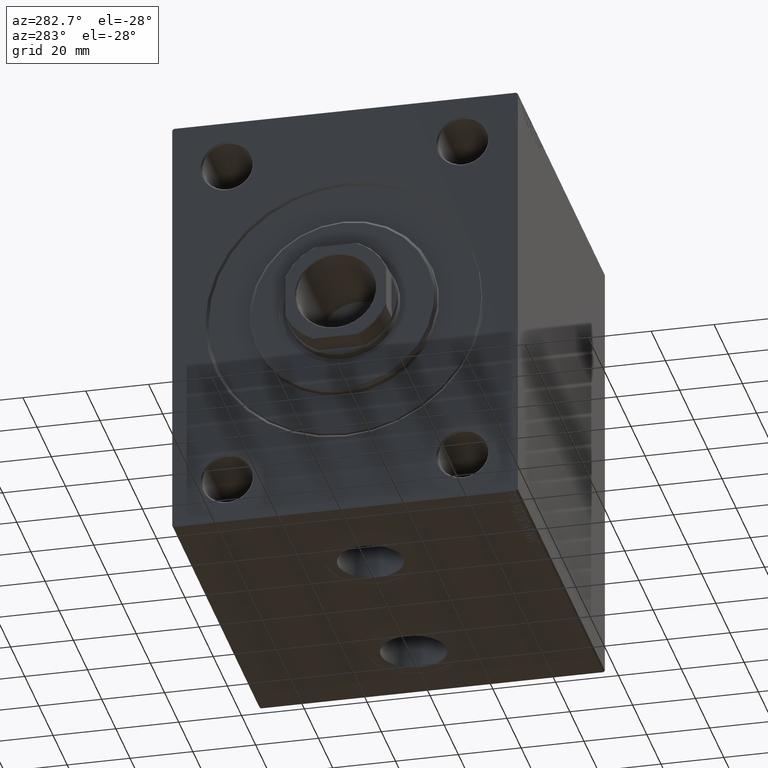
[diagram: clean part render]
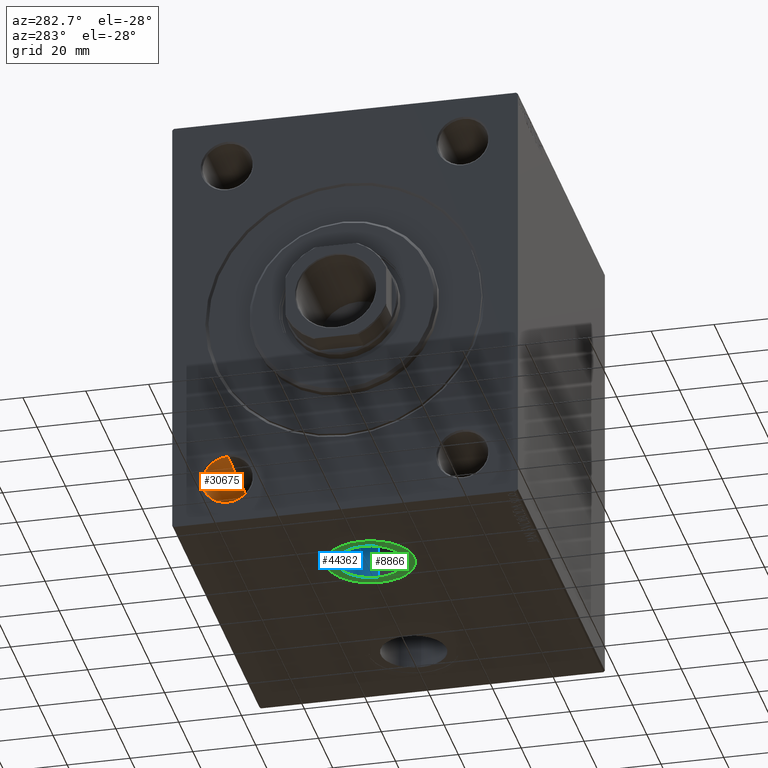
[diagram: same view with three faces highlighted in distinct colors, each labeled with its STEP entity id]
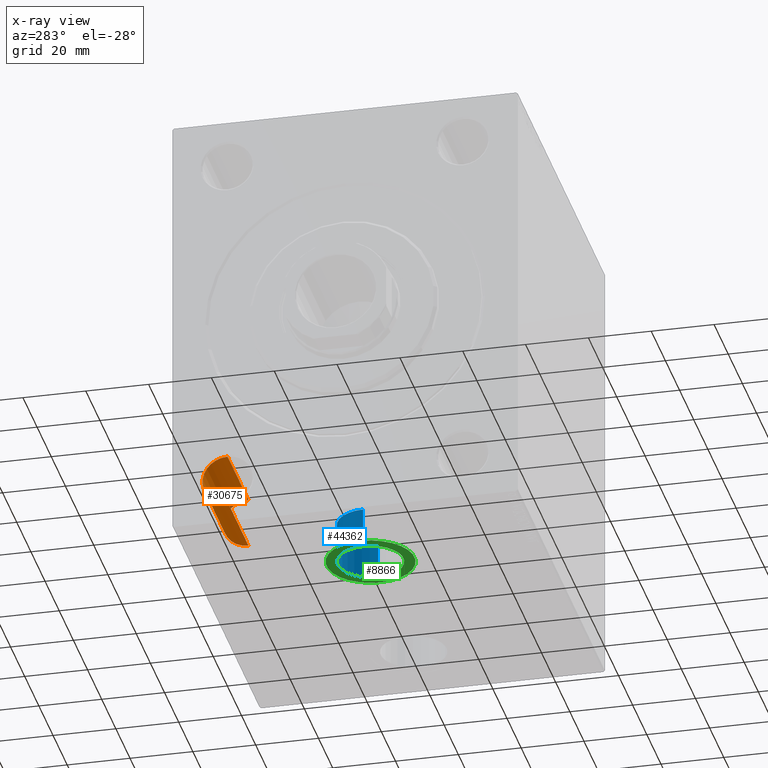
[diagram: x-ray of the same camera — body ghosted, the three highlighted faces saturated]
A machine part, auxiliary view with three faces highlighted in distinct colors.
The next image is the same camera in x-ray (body ghosted, the three faces saturated) — at least one of them is partly hidden behind the body in this view.
Their STEP definitions:

[orange] entity #30675 — the highlighted cylindrical surface (edge-blend (fillet) strip) has radius 8 mm, axis along (-1, -0, -0).
#1028 = ORIENTED_EDGE ( 'NONE', *, *, #29192, .T. ) ;
#2004 = EDGE_CURVE ( 'NONE', #12949, #40361, #36767, .T. ) ;
#3539 = EDGE_LOOP ( 'NONE', ( #16494, #24688, #1028, #40886 ) ) ;
#5089 = DIRECTION ( 'NONE',  ( 0.000000000000000000, 0.000000000000000000, -1.000000000000000000 ) ) ;
#5254 = CARTESIAN_POINT ( 'NONE',  ( 0.000000000000000000, 37.50000000000000000, -62.99999999999998579 ) ) ;
#5890 = VECTOR ( 'NONE', #29177, 1000.000000000000000 ) ;
#6175 = DIRECTION ( 'NONE',  ( -1.000000000000000000, -0.000000000000000000, -0.000000000000000000 ) ) ;
#6627 = DIRECTION ( 'NONE',  ( 0.000000000000000000, 0.000000000000000000, 1.000000000000000000 ) ) ;
#8867 = VERTEX_POINT ( 'NONE', #14168 ) ;
#9521 = CYLINDRICAL_SURFACE ( 'NONE', #27727, 7.999999999999992895 ) ;
#9733 = DIRECTION ( 'NONE',  ( 0.000000000000000000, 0.000000000000000000, 1.000000000000000000 ) ) ;
#10717 = VERTEX_POINT ( 'NONE', #24980 ) ;
#11651 = VECTOR ( 'NONE', #11918, 1000.000000000000000 ) ;
#11781 = CARTESIAN_POINT ( 'NONE',  ( 0.5000000000000108802, 37.50000000000000000, -62.99999999999998579 ) ) ;
#11918 = DIRECTION ( 'NONE',  ( -1.000000000000000000, -0.000000000000000000, -0.000000000000000000 ) ) ;
#12472 = CARTESIAN_POINT ( 'NONE',  ( 0.5000000000000108802, 37.50000000000000000, -54.99999999999999289 ) ) ;
#12949 = VERTEX_POINT ( 'NONE', #33613 ) ;
#14168 = CARTESIAN_POINT ( 'NONE',  ( 0.5000000000000108802, 37.50000000000000000, -47.00000000000000000 ) ) ;
#14182 = EDGE_CURVE ( 'NONE', #10717, #12949, #42064, .T. ) ;
#16494 = ORIENTED_EDGE ( 'NONE', *, *, #2004, .F. ) ;
#20748 = CARTESIAN_POINT ( 'NONE',  ( 0.000000000000000000, 37.50000000000000000, -54.99999999999999289 ) ) ;
#24688 = ORIENTED_EDGE ( 'NONE', *, *, #14182, .F. ) ;
#24980 = CARTESIAN_POINT ( 'NONE',  ( 30.00000000000000000, 37.50000000000000000, -47.00000000000000000 ) ) ;
#26978 = FACE_OUTER_BOUND ( 'NONE', #3539, .T. ) ;
#27727 = AXIS2_PLACEMENT_3D ( 'NONE', #20748, #44454, #9733 ) ;
#27785 = CARTESIAN_POINT ( 'NONE',  ( 30.00000000000000000, 37.50000000000000000, -54.99999999999999289 ) ) ;
#29177 = DIRECTION ( 'NONE',  ( -1.000000000000000000, -0.000000000000000000, -0.000000000000000000 ) ) ;
#29192 = EDGE_CURVE ( 'NONE', #10717, #8867, #29381, .T. ) ;
#29381 = LINE ( 'NONE', #36290, #11651 ) ;
#30675 = ADVANCED_FACE ( 'NONE', ( #26978 ), #9521, .F. ) ;
#31806 = AXIS2_PLACEMENT_3D ( 'NONE', #27785, #6175, #6627 ) ;
#33613 = CARTESIAN_POINT ( 'NONE',  ( 30.00000000000000000, 37.50000000000000000, -62.99999999999998579 ) ) ;
#36290 = CARTESIAN_POINT ( 'NONE',  ( 0.000000000000000000, 37.50000000000000000, -47.00000000000000000 ) ) ;
#36767 = LINE ( 'NONE', #5254, #5890 ) ;
#40046 = DIRECTION ( 'NONE',  ( -1.000000000000000000, 0.000000000000000000, 0.000000000000000000 ) ) ;
#40361 = VERTEX_POINT ( 'NONE', #11781 ) ;
#40886 = ORIENTED_EDGE ( 'NONE', *, *, #45483, .T. ) ;
#41652 = AXIS2_PLACEMENT_3D ( 'NONE', #12472, #40046, #5089 ) ;
#42064 = CIRCLE ( 'NONE', #31806, 7.999999999999992895 ) ;
#44454 = DIRECTION ( 'NONE',  ( -1.000000000000000000, -0.000000000000000000, -0.000000000000000000 ) ) ;
#44570 = CIRCLE ( 'NONE', #41652, 7.999999999999992895 ) ;
#45483 = EDGE_CURVE ( 'NONE', #8867, #40361, #44570, .T. ) ;

[blue] entity #44362 — the highlighted cylindrical surface (edge-blend (fillet) strip) has radius 10.48 mm, axis along (-0, -0, -1).
#1410 = CARTESIAN_POINT ( 'NONE',  ( 46.47999999999999687, 5.489560609482857396E-15, -57.00000000000000000 ) ) ;
#1724 = DIRECTION ( 'NONE',  ( 0.000000000000000000, 0.000000000000000000, -1.000000000000000000 ) ) ;
#5362 = LINE ( 'NONE', #26285, #6078 ) ;
#6078 = VECTOR ( 'NONE', #31033, 1000.000000000000000 ) ;
#6149 = EDGE_CURVE ( 'NONE', #33362, #25493, #35627, .T. ) ;
#6902 = DIRECTION ( 'NONE',  ( -0.000000000000000000, -0.000000000000000000, -1.000000000000000000 ) ) ;
#8506 = CIRCLE ( 'NONE', #31999, 10.48000000000000043 ) ;
#8883 = CARTESIAN_POINT ( 'NONE',  ( 36.00000000000000000, 4.206130763976431907E-15, -57.00000000000000000 ) ) ;
#9445 = EDGE_CURVE ( 'NONE', #23921, #33700, #5362, .T. ) ;
#13409 = DIRECTION ( 'NONE',  ( 0.000000000000000000, 0.000000000000000000, -1.000000000000000000 ) ) ;
#13808 = CARTESIAN_POINT ( 'NONE',  ( 46.47999999999999687, 5.489560609482857396E-15, -57.00000000000000000 ) ) ;
#13866 = CARTESIAN_POINT ( 'NONE',  ( 36.00000000000000000, 4.206130763976431907E-15, -69.90000000000000568 ) ) ;
#14501 = CYLINDRICAL_SURFACE ( 'NONE', #39379, 10.48000000000000043 ) ;
#17351 = ORIENTED_EDGE ( 'NONE', *, *, #21361, .T. ) ;
#17726 = FACE_OUTER_BOUND ( 'NONE', #27175, .T. ) ;
#17757 = DIRECTION ( 'NONE',  ( -1.000000000000000000, 0.000000000000000000, 0.000000000000000000 ) ) ;
#21361 = EDGE_CURVE ( 'NONE', #33700, #25493, #8506, .T. ) ;
#23337 = ORIENTED_EDGE ( 'NONE', *, *, #6149, .F. ) ;
#23921 = VERTEX_POINT ( 'NONE', #35880 ) ;
#25493 = VERTEX_POINT ( 'NONE', #41675 ) ;
#26285 = CARTESIAN_POINT ( 'NONE',  ( 25.51999999999999602, 4.206130763976431907E-15, -57.00000000000000000 ) ) ;
#27175 = EDGE_LOOP ( 'NONE', ( #23337, #36184, #37155, #17351 ) ) ;
#29455 = EDGE_CURVE ( 'NONE', #23921, #33362, #43951, .T. ) ;
#30552 = CARTESIAN_POINT ( 'NONE',  ( 25.51999999999999602, 4.206130763976431907E-15, -69.90000000000000568 ) ) ;
#31033 = DIRECTION ( 'NONE',  ( -0.000000000000000000, -0.000000000000000000, -1.000000000000000000 ) ) ;
#31754 = CARTESIAN_POINT ( 'NONE',  ( 36.00000000000000000, 4.206130763976431907E-15, -57.00000000000000000 ) ) ;
#31981 = DIRECTION ( 'NONE',  ( -0.000000000000000000, -0.000000000000000000, -1.000000000000000000 ) ) ;
#31999 = AXIS2_PLACEMENT_3D ( 'NONE', #13866, #13409, #17757 ) ;
#33362 = VERTEX_POINT ( 'NONE', #1410 ) ;
#33484 = DIRECTION ( 'NONE',  ( -1.000000000000000000, 0.000000000000000000, 0.000000000000000000 ) ) ;
#33700 = VERTEX_POINT ( 'NONE', #30552 ) ;
#35627 = LINE ( 'NONE', #13808, #39747 ) ;
#35880 = CARTESIAN_POINT ( 'NONE',  ( 25.51999999999999602, 4.206130763976431907E-15, -57.00000000000000000 ) ) ;
#36184 = ORIENTED_EDGE ( 'NONE', *, *, #29455, .F. ) ;
#37155 = ORIENTED_EDGE ( 'NONE', *, *, #9445, .T. ) ;
#39379 = AXIS2_PLACEMENT_3D ( 'NONE', #31754, #31981, #42091 ) ;
#39747 = VECTOR ( 'NONE', #6902, 1000.000000000000000 ) ;
#41031 = AXIS2_PLACEMENT_3D ( 'NONE', #8883, #1724, #33484 ) ;
#41675 = CARTESIAN_POINT ( 'NONE',  ( 46.47999999999999687, 5.489560609482857396E-15, -69.90000000000000568 ) ) ;
#42091 = DIRECTION ( 'NONE',  ( -1.000000000000000000, 0.000000000000000000, 0.000000000000000000 ) ) ;
#43951 = CIRCLE ( 'NONE', #41031, 10.48000000000000043 ) ;
#44362 = ADVANCED_FACE ( 'NONE', ( #17726 ), #14501, .F. ) ;

[green] entity #8866 — the highlighted planar face has unit normal (0, 0, -1).
#516 = CARTESIAN_POINT ( 'NONE',  ( 36.00000000000000000, 4.206130763976431907E-15, -69.90000000000000568 ) ) ;
#2075 = DIRECTION ( 'NONE',  ( -1.000000000000000000, 0.000000000000000000, 0.000000000000000000 ) ) ;
#3469 = ORIENTED_EDGE ( 'NONE', *, *, #21361, .F. ) ;
#3587 = DIRECTION ( 'NONE',  ( 0.000000000000000000, 0.000000000000000000, -1.000000000000000000 ) ) ;
#3739 = DIRECTION ( 'NONE',  ( 0.000000000000000000, 0.000000000000000000, -1.000000000000000000 ) ) ;
#4058 = CARTESIAN_POINT ( 'NONE',  ( 22.00000000000000000, 4.206130763976431907E-15, -69.90000000000000568 ) ) ;
#4590 = ORIENTED_EDGE ( 'NONE', *, *, #12410, .T. ) ;
#5756 = DIRECTION ( 'NONE',  ( 0.000000000000000000, 0.000000000000000000, -1.000000000000000000 ) ) ;
#8506 = CIRCLE ( 'NONE', #31999, 10.48000000000000043 ) ;
#8866 = ADVANCED_FACE ( 'NONE', ( #39216, #21079 ), #35118, .T. ) ;
#12410 = EDGE_CURVE ( 'NONE', #22083, #25606, #28903, .T. ) ;
#13409 = DIRECTION ( 'NONE',  ( 0.000000000000000000, 0.000000000000000000, -1.000000000000000000 ) ) ;
#13866 = CARTESIAN_POINT ( 'NONE',  ( 36.00000000000000000, 4.206130763976431907E-15, -69.90000000000000568 ) ) ;
#13884 = DIRECTION ( 'NONE',  ( -1.000000000000000000, 0.000000000000000000, 0.000000000000000000 ) ) ;
#14729 = EDGE_LOOP ( 'NONE', ( #3469, #33593 ) ) ;
#15906 = DIRECTION ( 'NONE',  ( -1.000000000000000000, 0.000000000000000000, 0.000000000000000000 ) ) ;
#16230 = EDGE_LOOP ( 'NONE', ( #4590, #34425 ) ) ;
#16420 = AXIS2_PLACEMENT_3D ( 'NONE', #26004, #40043, #15906 ) ;
#17757 = DIRECTION ( 'NONE',  ( -1.000000000000000000, 0.000000000000000000, 0.000000000000000000 ) ) ;
#18650 = CARTESIAN_POINT ( 'NONE',  ( 50.00000000000000000, 5.920636282782727137E-15, -69.90000000000000568 ) ) ;
#18764 = CIRCLE ( 'NONE', #39343, 10.48000000000000043 ) ;
#19576 = EDGE_CURVE ( 'NONE', #25606, #22083, #23115, .T. ) ;
#21079 = FACE_OUTER_BOUND ( 'NONE', #16230, .T. ) ;
#21121 = EDGE_CURVE ( 'NONE', #25493, #33700, #18764, .T. ) ;
#21361 = EDGE_CURVE ( 'NONE', #33700, #25493, #8506, .T. ) ;
#21652 = AXIS2_PLACEMENT_3D ( 'NONE', #516, #3739, #13884 ) ;
#22083 = VERTEX_POINT ( 'NONE', #4058 ) ;
#23115 = CIRCLE ( 'NONE', #21652, 13.99999999999999822 ) ;
#23230 = CARTESIAN_POINT ( 'NONE',  ( 36.00000000000000000, 4.206130763976431907E-15, -69.90000000000000568 ) ) ;
#25493 = VERTEX_POINT ( 'NONE', #41675 ) ;
#25606 = VERTEX_POINT ( 'NONE', #18650 ) ;
#26004 = CARTESIAN_POINT ( 'NONE',  ( 36.00000000000000000, 4.206130763976431907E-15, -69.90000000000000568 ) ) ;
#28196 = DIRECTION ( 'NONE',  ( -1.000000000000000000, 0.000000000000000000, -0.000000000000000000 ) ) ;
#28903 = CIRCLE ( 'NONE', #16420, 13.99999999999999822 ) ;
#30552 = CARTESIAN_POINT ( 'NONE',  ( 25.51999999999999602, 4.206130763976431907E-15, -69.90000000000000568 ) ) ;
#31999 = AXIS2_PLACEMENT_3D ( 'NONE', #13866, #13409, #17757 ) ;
#32107 = CARTESIAN_POINT ( 'NONE',  ( 0.000000000000000000, 0.000000000000000000, -69.90000000000000568 ) ) ;
#33593 = ORIENTED_EDGE ( 'NONE', *, *, #21121, .F. ) ;
#33700 = VERTEX_POINT ( 'NONE', #30552 ) ;
#34425 = ORIENTED_EDGE ( 'NONE', *, *, #19576, .T. ) ;
#34707 = AXIS2_PLACEMENT_3D ( 'NONE', #32107, #3587, #28196 ) ;
#35118 = PLANE ( 'NONE',  #34707 ) ;
#39216 = FACE_BOUND ( 'NONE', #14729, .T. ) ;
#39343 = AXIS2_PLACEMENT_3D ( 'NONE', #23230, #5756, #2075 ) ;
#40043 = DIRECTION ( 'NONE',  ( 0.000000000000000000, 0.000000000000000000, -1.000000000000000000 ) ) ;
#41675 = CARTESIAN_POINT ( 'NONE',  ( 46.47999999999999687, 5.489560609482857396E-15, -69.90000000000000568 ) ) ;